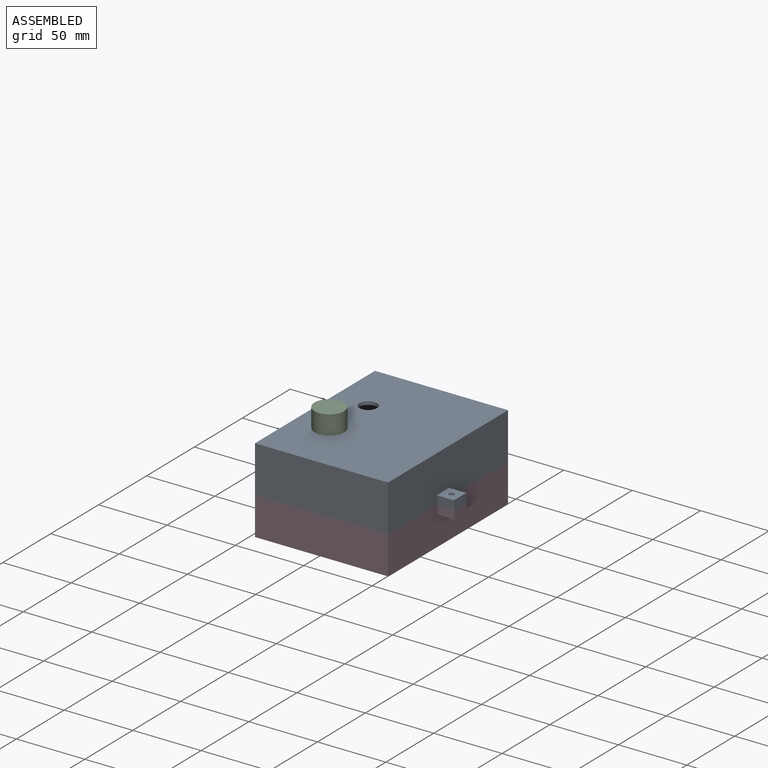
[diagram: assembled view]
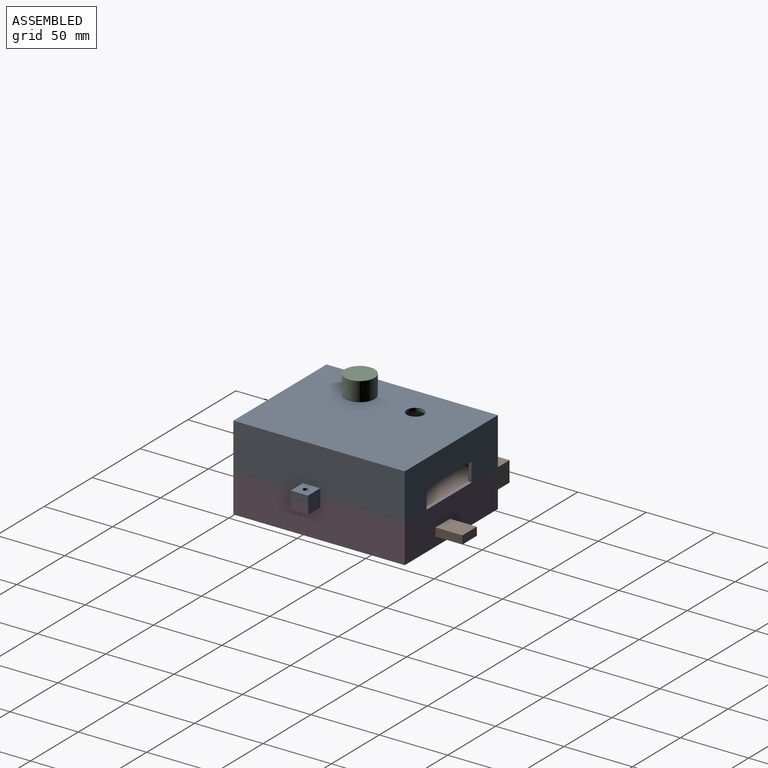
[diagram: assembled view, second angle]
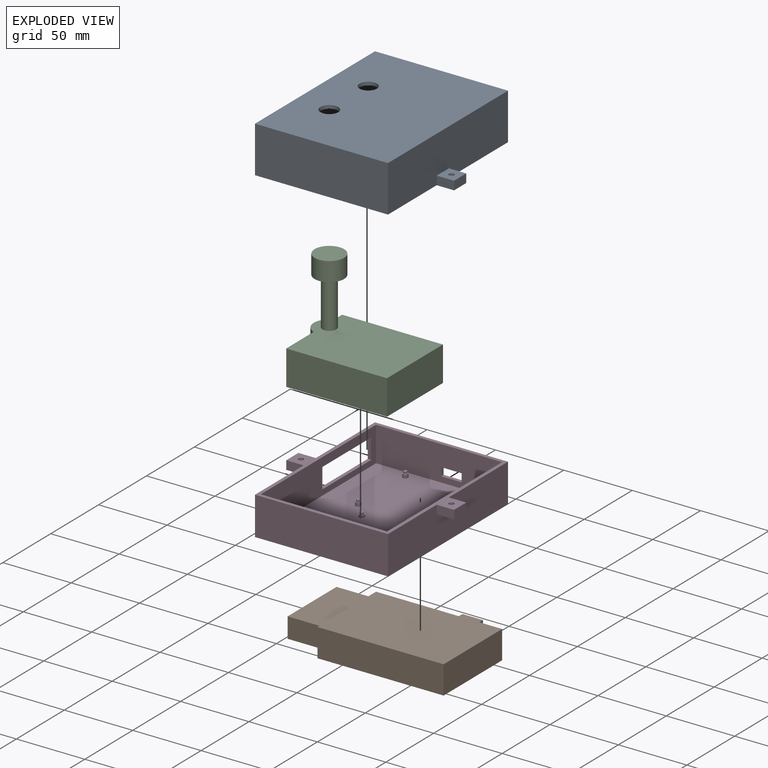
[diagram: exploded view]
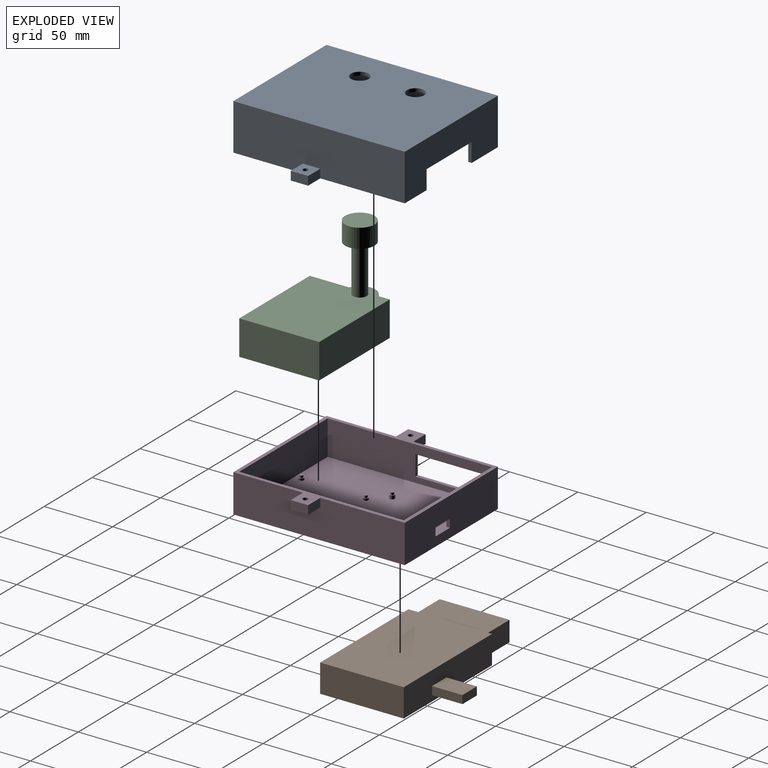
[diagram: exploded view, second angle]
ASSEMBLY  parts=4 mates=9
PART A: 26 faces, bbox 122.7x125.3x34 mm
  f0: plane 125.28x34.04mm, normal (-1,0,0), area 4183.5mm2, adj f5,f6,f8,f9,f16,f19,f20
  f1: plane 120.2x31.5mm, normal (1,0,0), area 3786mm2, adj f2,f4,f9,f10
  f2: plane 92.18x31.5mm, normal (0,-1,0), area 2251.3mm2, adj f1,f3,f9,f10,f13,f14,f15
  f3: plane 120.2x31.5mm, normal (-1,0,0), area 3786mm2, adj f2,f4,f9,f10
  f4: plane 92.18x31.5mm, normal (0,1,0), area 2903.3mm2, adj f1,f3,f9,f10
  f5: plane 97.26x34.04mm, normal (0,1,0), area 2658.3mm2, adj f0,f7,f8,f9,f13,f14,f15
  f6: plane 97.26x34.04mm, normal (0,-1,0), area 3310.3mm2, adj f0,f7,f8,f9
  f7: plane 125.28x34.04mm, normal (1,0,0), area 4183.5mm2, adj f5,f6,f8,f9,f21,f22,f25
  f8: plane 125.28x97.26mm, normal (0,0,1), area 11925.1mm2, adj f0,f5,f6,f7,f11,f12
  f9: plane 125.28x122.66mm, normal (0,0,-1), area 1285mm2, adj f0,f1,f2,f3,f4,f5,f6,f7
  f10: plane 120.2x92.18mm, normal (0,0,-1), area 10820.4mm2, adj f1,f2,f3,f4,f11,f12
  f11: cylinder r=6.52mm len=13.03mm, axis (0,0,1), area 104mm2, adj f8,f10
  f12: cylinder r=6.35mm len=12.7mm, axis (0,0,1), area 101.3mm2, adj f8,f10
  f13: plane 47.04x2.54mm, normal (0,0,-1), area 119.5mm2, adj f2,f5,f14,f15
  f14: plane 13.86x2.54mm, normal (1,0,0), area 35.2mm2, adj f2,f5,f9,f13
  f15: plane 13.86x2.54mm, normal (-1,0,0), area 35.2mm2, adj f2,f5,f9,f13
  f16: plane 12.7x6.35mm, normal (0,-1,0), area 80.6mm2, adj f0,f9,f17,f20
  f17: plane 12.7x6.35mm, normal (-1,0,0), area 80.6mm2, adj f9,f16,f19,f20
  f18: cylinder r=1.91mm len=6.35mm, axis (0,0,-1), area 76mm2, adj f9,f20
  f19: plane 12.7x6.35mm, normal (0,1,0), area 80.6mm2, adj f0,f9,f17,f20
  f20: plane 12.7x12.7mm, normal (0,0,1), area 149.9mm2, adj f0,f16,f17,f18,f19
  f21: plane 12.7x6.35mm, normal (0,-1,0), area 80.6mm2, adj f7,f9,f24,f25
  f22: plane 12.7x6.35mm, normal (0,1,0), area 80.6mm2, adj f7,f9,f24,f25
  f23: cylinder r=1.91mm len=6.35mm, axis (0,0,-1), area 76mm2, adj f9,f25
  f24: plane 12.7x6.35mm, normal (1,0,0), area 80.6mm2, adj f9,f21,f22,f25
  f25: plane 12.7x12.7mm, normal (0,0,1), area 149.9mm2, adj f7,f21,f22,f23,f24
PART B: 32 faces, bbox 117.6x83.3x20.7 mm
  f0: plane 61.08x20.65mm, normal (1,0,0), area 505.5mm2, adj f1,f2,f4,f21,f27,f28,f29,f30
  f1: plane 92.18x20.65mm, normal (0,-1,0), area 1813.5mm2, adj f0,f2,f3,f21,f22,f23,f24,f25
  f2: plane 92.18x61.08mm, normal (0,0,-1), area 5584.8mm2, adj f0,f1,f3,f4,f5,f6,f7,f8
  f3: plane 61.08x20.65mm, normal (-1,0,0), area 1261.3mm2, adj f1,f2,f4,f21
  f4: plane 92.18x20.65mm, normal (0,1,0), area 1903.5mm2, adj f0,f2,f3,f21
  f5: cylinder r=1.91mm len=3.81mm, axis (0,0,-1), area 30.4mm2, adj f2,f12
  f6: cylinder r=1.91mm len=3.81mm, axis (0,0,-1), area 30.4mm2, adj f2,f11
  f7: cylinder r=1.91mm len=3.81mm, axis (0,0,-1), area 30.4mm2, adj f2,f10
  f8: cylinder r=1.91mm len=3.81mm, axis (0,0,-1), area 30.4mm2, adj f2,f9
  f9: plane 3.81x3.81mm, normal (0,0,-1), area 6.3mm2, adj f8,f13
  f10: plane 3.81x3.81mm, normal (0,0,-1), area 6.3mm2, adj f7,f16
  f11: plane 3.81x3.81mm, normal (0,0,-1), area 6.3mm2, adj f6,f15
  f12: plane 3.81x3.81mm, normal (0,0,-1), area 6.3mm2, adj f5,f14
  f13: cylinder r=1.27mm len=2.54mm, axis (0,0,-1), area 12.8mm2, adj f9,f20
  f14: cylinder r=1.27mm len=2.54mm, axis (0,0,-1), area 12.8mm2, adj f12,f19
  f15: cylinder r=1.27mm len=2.54mm, axis (0,0,-1), area 12.8mm2, adj f11,f18
  f16: cylinder r=1.27mm len=2.54mm, axis (0,0,-1), area 12.8mm2, adj f10,f17
  f17: plane 2.54x2.54mm, normal (0,0,-1), area 5.1mm2, adj f16
  f18: plane 2.54x2.54mm, normal (0,0,-1), area 5.1mm2, adj f15
  f19: plane 2.54x2.54mm, normal (0,0,-1), area 5.1mm2, adj f14
  f20: plane 2.54x2.54mm, normal (0,0,-1), area 5.1mm2, adj f13
  f21: plane 92.18x61.08mm, normal (0,0,1), area 5630.4mm2, adj f0,f1,f3,f4
  f22: plane 22.25x6mm, normal (-1,0,0), area 133.5mm2, adj f1,f23,f25,f26
  f23: plane 22.25x15mm, normal (0,0,-1), area 333.8mm2, adj f1,f22,f24,f26
  f24: plane 22.25x6mm, normal (1,0,0), area 133.5mm2, adj f1,f23,f25,f26
  f25: plane 22.25x15mm, normal (0,0,1), area 333.8mm2, adj f1,f22,f24,f26
  f26: plane 15x6mm, normal (0,-1,0), area 90mm2, adj f22,f23,f24,f25
  f27: plane 51.07x25.4mm, normal (0,0,-1), area 1297.1mm2, adj f0,f28,f30,f31
  f28: plane 25.4x14.8mm, normal (0,1,0), area 375.9mm2, adj f0,f27,f29,f31
  f29: plane 51.07x25.4mm, normal (0,0,1), area 1297.1mm2, adj f0,f28,f30,f31
  f30: plane 25.4x14.8mm, normal (0,-1,0), area 375.9mm2, adj f0,f27,f29,f31
  f31: plane 51.07x14.8mm, normal (1,0,0), area 755.8mm2, adj f27,f28,f29,f30
PART C: 28 faces, bbox 81x58.4x74.2 mm
  f0: plane 25.4x8.46mm, normal (-1,0,0), area 214.9mm2, adj f1,f3,f18,f19
  f1: plane 81.03x58.42mm, normal (0,0,-1), area 4371.5mm2, adj f0,f2,f3,f4,f5,f11,f13,f15
  f2: plane 28.7x25.4mm, normal (-1,0,0), area 729mm2, adj f1,f4,f18,f19
  f3: plane 73.66x25.4mm, normal (0,1,0), area 1871mm2, adj f0,f1,f5,f19
  f4: plane 73.66x25.4mm, normal (0,-1,0), area 1871mm2, adj f1,f2,f5,f19
  f5: plane 58.42x25.4mm, normal (1,0,0), area 1483.9mm2, adj f1,f3,f4,f19
  f6: cylinder r=1.27mm len=2.54mm, axis (0,0,-1), area 12.8mm2, adj f10,f20
  f7: cylinder r=1.27mm len=2.54mm, axis (0,0,-1), area 12.8mm2, adj f12,f21
  f8: cylinder r=1.27mm len=2.54mm, axis (0,0,-1), area 12.8mm2, adj f14,f22
  f9: cylinder r=1.27mm len=2.54mm, axis (0,0,-1), area 12.8mm2, adj f16,f23
  f10: plane 3.81x3.81mm, normal (0,0,-1), area 6.3mm2, adj f6,f11
  f11: cylinder r=1.91mm len=3.81mm, axis (0,0,-1), area 18mm2, adj f1,f10
  f12: plane 3.81x3.81mm, normal (0,0,-1), area 6.3mm2, adj f7,f13
  f13: cylinder r=1.91mm len=3.81mm, axis (0,0,-1), area 18mm2, adj f1,f12
  f14: plane 3.81x3.81mm, normal (0,0,-1), area 6.3mm2, adj f8,f15
  f15: cylinder r=1.91mm len=3.81mm, axis (0,0,-1), area 18mm2, adj f1,f14
  f16: plane 3.81x3.81mm, normal (0,0,-1), area 6.3mm2, adj f9,f17
  f17: cylinder r=1.91mm len=3.81mm, axis (0,0,-1), area 18mm2, adj f1,f16
  f18: cylinder r=11.35mm len=25.4mm, axis (0,0,-1), area 699.1mm2, adj f0,f1,f2,f19
  f19: plane 81.03x58.42mm, normal (0,0,1), area 4336mm2, adj f0,f2,f3,f4,f5,f18,f24
  f20: plane 2.54x2.54mm, normal (0,0,-1), area 5.1mm2, adj f6
  f21: plane 2.54x2.54mm, normal (0,0,-1), area 5.1mm2, adj f7
  f22: plane 2.54x2.54mm, normal (0,0,-1), area 5.1mm2, adj f8
  f23: plane 2.54x2.54mm, normal (0,0,-1), area 5.1mm2, adj f9
  f24: cylinder r=5.08mm len=34.83mm, axis (0,0,-1), area 1111.7mm2, adj f19,f27
  f25: plane 21.59x21.59mm, normal (0,0,1), area 366.1mm2, adj f26
  f26: cylinder r=10.79mm len=21.59mm, axis (0,0,-1), area 947.5mm2, adj f25,f27
  f27: plane 21.59x21.59mm, normal (0,0,-1), area 285mm2, adj f24,f26
PART D: 61 faces, bbox 122.7x125.3x27.9 mm
  f0: plane 125.28x27.94mm, normal (-1,0,0), area 2664mm2, adj f1,f2,f4,f12,f13,f14,f15,f18
  f1: plane 125.28x122.66mm, normal (0,0,1), area 1404.5mm2, adj f0,f2,f3,f4,f5,f6,f7,f16
  f2: plane 97.26x27.94mm, normal (0,-1,0), area 2717.4mm2, adj f0,f1,f3,f18
  f3: plane 125.28x27.94mm, normal (1,0,0), area 3419.8mm2, adj f1,f2,f4,f18,f56,f57,f60
  f4: plane 97.26x27.94mm, normal (0,1,0), area 2627.4mm2, adj f0,f1,f3,f8,f9,f10,f11,f18
  f5: plane 120.2x25.4mm, normal (-1,0,0), area 3053.2mm2, adj f1,f6,f16,f17
  f6: plane 92.18x25.4mm, normal (0,-1,0), area 2251.4mm2, adj f1,f5,f7,f8,f9,f10,f11,f17
  f7: plane 120.2x25.4mm, normal (1,0,0), area 2297.4mm2, adj f1,f6,f12,f13,f14,f15,f16,f17
  f8: plane 15x2.54mm, normal (0,0,-1), area 38.1mm2, adj f4,f6,f9,f11
  f9: plane 6x2.54mm, normal (1,0,0), area 15.2mm2, adj f4,f6,f8,f10
  f10: plane 15x2.54mm, normal (0,0,1), area 38.1mm2, adj f4,f6,f9,f11
  f11: plane 6x2.54mm, normal (-1,0,0), area 15.2mm2, adj f4,f6,f8,f10
  f12: plane 14.8x2.54mm, normal (0,-1,0), area 37.6mm2, adj f0,f7,f13,f15
  f13: plane 51.07x2.54mm, normal (0,0,-1), area 129.7mm2, adj f0,f7,f12,f14
  f14: plane 14.8x2.54mm, normal (0,1,0), area 37.6mm2, adj f0,f7,f13,f15
  f15: plane 51.07x2.54mm, normal (0,0,1), area 129.7mm2, adj f0,f7,f12,f14
  f16: plane 92.18x25.4mm, normal (0,1,0), area 2341.4mm2, adj f1,f5,f7,f17
  f17: plane 120.2x92.18mm, normal (0,0,1), area 10989.2mm2, adj f5,f6,f7,f16,f22,f26,f30,f34
  f18: plane 125.28x97.26mm, normal (0,0,-1), area 12185.2mm2, adj f0,f2,f3,f4
  f19: plane 2.54x2.54mm, normal (0,0,1), area 5.1mm2, adj f20
  f20: cylinder r=1.27mm len=2.54mm, axis (0,0,-1), area 12.8mm2, adj f19,f21
  f21: plane 3.81x3.81mm, normal (0,0,1), area 6.3mm2, adj f20,f22
  f22: cylinder r=1.91mm len=3.81mm, axis (0,0,-1), area 18mm2, adj f17,f21
  f23: plane 2.54x2.54mm, normal (0,0,1), area 5.1mm2, adj f24
  f24: cylinder r=1.27mm len=2.54mm, axis (0,0,-1), area 12.8mm2, adj f23,f25
  f25: plane 3.81x3.81mm, normal (0,0,1), area 6.3mm2, adj f24,f26
  f26: cylinder r=1.91mm len=3.81mm, axis (0,0,-1), area 18mm2, adj f17,f25
  f27: plane 2.54x2.54mm, normal (0,0,1), area 5.1mm2, adj f28
  f28: cylinder r=1.27mm len=2.54mm, axis (0,0,-1), area 12.8mm2, adj f27,f29
  f29: plane 3.81x3.81mm, normal (0,0,1), area 6.3mm2, adj f28,f30
  f30: cylinder r=1.91mm len=3.81mm, axis (0,0,-1), area 30.4mm2, adj f17,f29
  f31: plane 2.54x2.54mm, normal (0,0,1), area 5.1mm2, adj f32
  f32: cylinder r=1.27mm len=2.54mm, axis (0,0,-1), area 12.8mm2, adj f31,f33
  f33: plane 3.81x3.81mm, normal (0,0,1), area 6.3mm2, adj f32,f34
  f34: cylinder r=1.91mm len=3.81mm, axis (0,0,-1), area 30.4mm2, adj f17,f33
  f35: plane 2.54x2.54mm, normal (0,0,1), area 5.1mm2, adj f36
  f36: cylinder r=1.27mm len=2.54mm, axis (0,0,-1), area 12.8mm2, adj f35,f37
  f37: plane 3.81x3.81mm, normal (0,0,1), area 6.3mm2, adj f36,f38
  f38: cylinder r=1.91mm len=3.81mm, axis (0,0,-1), area 18mm2, adj f17,f37
  f39: cylinder r=1.27mm len=2.54mm, axis (0,0,-1), area 12.8mm2, adj f40,f42
  f40: plane 3.81x3.81mm, normal (0,0,1), area 6.3mm2, adj f39,f41
  f41: cylinder r=1.91mm len=3.81mm, axis (0,0,-1), area 18mm2, adj f17,f40
  f42: plane 2.54x2.54mm, normal (0,0,1), area 5.1mm2, adj f39
  f43: cylinder r=1.91mm len=3.81mm, axis (0,0,-1), area 30.4mm2, adj f17,f44
  f44: plane 3.81x3.81mm, normal (0,0,1), area 6.3mm2, adj f43,f45
  f45: cylinder r=1.27mm len=2.54mm, axis (0,0,-1), area 12.8mm2, adj f44,f46
  f46: plane 2.54x2.54mm, normal (0,0,1), area 5.1mm2, adj f45
  f47: plane 2.54x2.54mm, normal (0,0,1), area 5.1mm2, adj f48
  f48: cylinder r=1.27mm len=2.54mm, axis (0,0,-1), area 12.8mm2, adj f47,f49
  f49: plane 3.81x3.81mm, normal (0,0,1), area 6.3mm2, adj f48,f50
  f50: cylinder r=1.91mm len=3.81mm, axis (0,0,-1), area 30.4mm2, adj f17,f49
  f51: plane 12.7x6.35mm, normal (0,1,0), area 80.6mm2, adj f0,f1,f52,f55
  f52: plane 12.7x6.35mm, normal (-1,0,0), area 80.6mm2, adj f1,f51,f54,f55
  f53: cylinder r=1.91mm len=6.35mm, axis (0,0,1), area 76mm2, adj f1,f55
  f54: plane 12.7x6.35mm, normal (0,-1,0), area 80.6mm2, adj f0,f1,f52,f55
  f55: plane 12.7x12.7mm, normal (0,0,-1), area 149.9mm2, adj f0,f51,f52,f53,f54
  f56: plane 12.7x6.35mm, normal (0,1,0), area 80.6mm2, adj f1,f3,f59,f60
  f57: plane 12.7x6.35mm, normal (0,-1,0), area 80.6mm2, adj f1,f3,f59,f60
  f58: cylinder r=1.91mm len=6.35mm, axis (0,0,1), area 76mm2, adj f1,f60
  f59: plane 12.7x6.35mm, normal (1,0,0), area 80.6mm2, adj f1,f56,f57,f60
  f60: plane 12.7x12.7mm, normal (0,0,-1), area 149.9mm2, adj f3,f56,f57,f58,f59
PLACE A t=(128.2,32.4,-33.04)mm
PLACE B rot(axis=(0,0,1),180deg) t=(123.12,150.07,-30.5)mm
PLACE C t=(57.08,34.94,-31.54)mm
PLACE D t=(128.2,32.4,-33.04)mm fixed
MATE slider B.f7 <-> D.f32  axis (0,0,-1) through (119.62,97.57,-29.7)mm
MATE planar C.f1 <-> D.f17  axis (0,0,-1) through (90.27,61.9,-33.04)mm
MATE slider B.f5 <-> D.f28  axis (0,0,-1) through (119.62,146.57,-29.7)mm
MATE planar B.f2 <-> D.f17  axis (0,0,-1) through (82.04,122.07,-33.04)mm
MATE planar A.f9 <-> D.f1  axis (0,0,-1) through (81.9,85.52,-7.64)mm
MATE planar A.f6 <-> D.f2  axis (0,-1,0) through (82.11,29.86,-7.64)mm
MATE planar A.f0 <-> D.f0  axis (-1,0,0) through (33.48,92.61,9.64)mm
MATE slider C.f8 <-> D.f24  axis (0,0,-1) through (123.12,42.56,-31.54)mm
MATE slider C.f7 <-> D.f36  axis (0,0,-1) through (123.12,70.5,-31.54)mm
